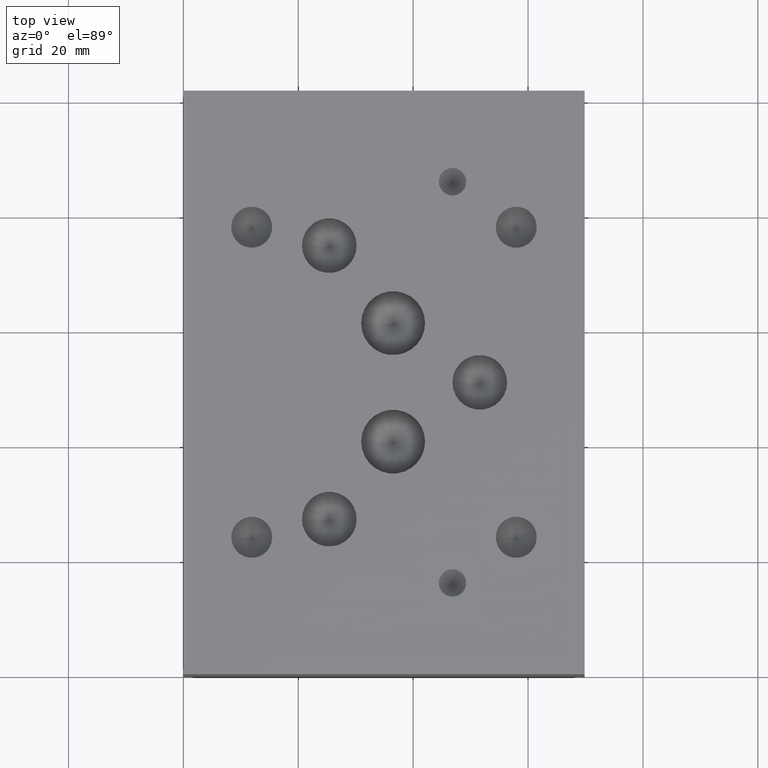
[diagram: clean part render]
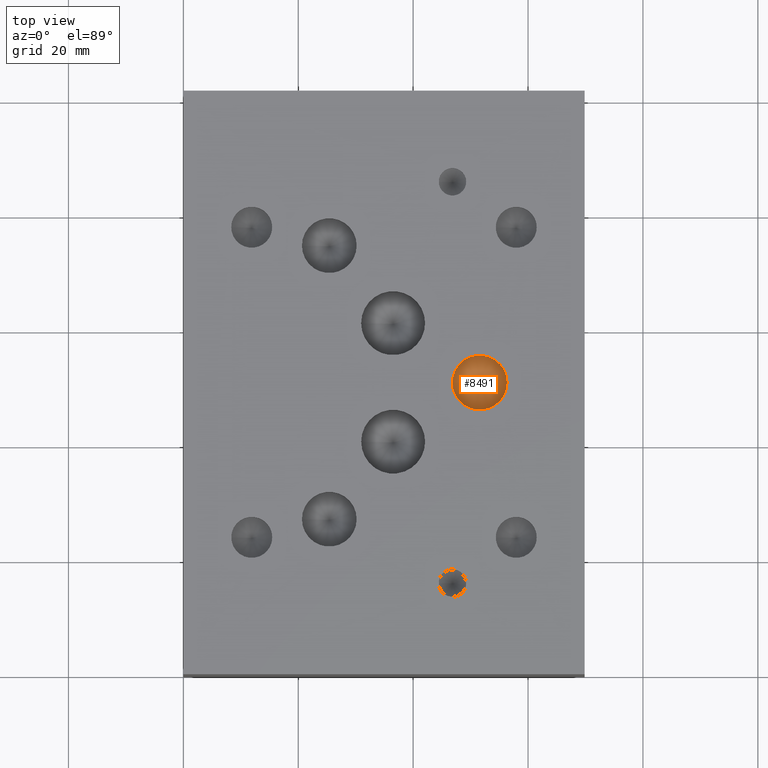
[diagram: same view with one face highlighted and labeled with its STEP entity id]
A machine part, top view. The second image highlights one B-rep face of the part: STEP entity #8491.
In plain terms, the highlighted conical surface has half-angle 60 deg.
Its self-contained STEP definition (entity closure, byte-faithful):
#144=CIRCLE('',#8945,4.7625);
#145=CIRCLE('',#8946,4.7625);
#172=CONICAL_SURFACE('',#8944,2.38125,1.0471975511966);
#916=FACE_OUTER_BOUND('',#1382,.T.);
#1382=EDGE_LOOP('',(#7349,#7350,#7351,#7352));
#2276=LINE('',#14220,#3150);
#3150=VECTOR('',#10688,2.38125);
#3945=VERTEX_POINT('',#14216);
#3946=VERTEX_POINT('',#14217);
#3947=VERTEX_POINT('',#14219);
#5098=EDGE_CURVE('',#3945,#3946,#144,.T.);
#5099=EDGE_CURVE('',#3946,#3947,#2276,.T.);
#5100=EDGE_CURVE('',#3946,#3945,#145,.T.);
#7349=ORIENTED_EDGE('',*,*,#5098,.T.);
#7350=ORIENTED_EDGE('',*,*,#5099,.T.);
#7351=ORIENTED_EDGE('',*,*,#5099,.F.);
#7352=ORIENTED_EDGE('',*,*,#5100,.T.);
#8491=ADVANCED_FACE('',(#916),#172,.F.);
#8944=AXIS2_PLACEMENT_3D('',#14215,#10684,#10685);
#8945=AXIS2_PLACEMENT_3D('',#14218,#10686,#10687);
#8946=AXIS2_PLACEMENT_3D('',#14221,#10689,#10690);
#10684=DIRECTION('center_axis',(0.,0.,1.));
#10685=DIRECTION('ref_axis',(1.,0.,0.));
#10686=DIRECTION('center_axis',(0.,0.,1.));
#10687=DIRECTION('ref_axis',(1.,0.,0.));
#10688=DIRECTION('',(0.866025403784439,1.06057523872491E-16,-0.5));
#10689=DIRECTION('center_axis',(0.,0.,1.));
#10690=DIRECTION('ref_axis',(1.,0.,0.));
#14215=CARTESIAN_POINT('Origin',(51.5874,50.7873,27.6255546714922));
#14216=CARTESIAN_POINT('',(56.3499,50.7873,29.00037));
#14217=CARTESIAN_POINT('',(46.8249,50.7873,29.00037));
#14218=CARTESIAN_POINT('Origin',(51.5874,50.7873,29.00037));
#14219=CARTESIAN_POINT('',(51.5874,50.7873,26.2507393429844));
#14220=CARTESIAN_POINT('',(49.20615,50.7873,27.6255546714922));
#14221=CARTESIAN_POINT('Origin',(51.5874,50.7873,29.00037));